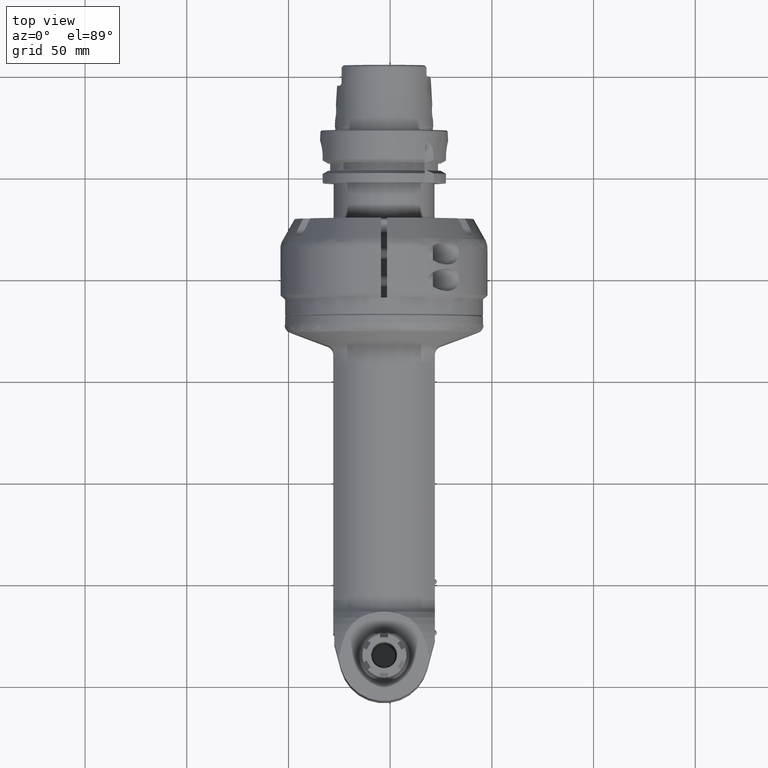
[diagram: clean part render]
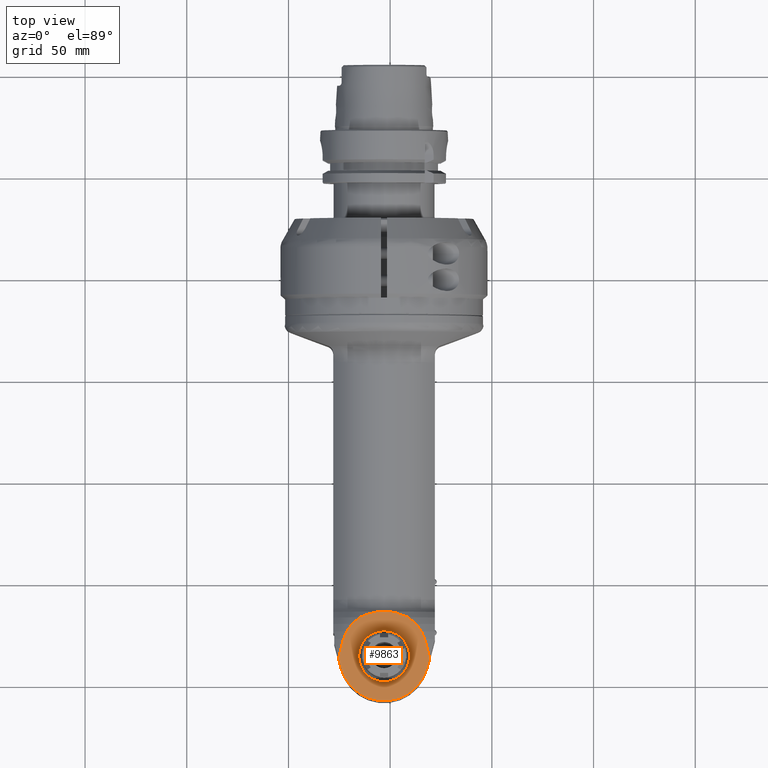
[diagram: same view with one face highlighted and labeled with its STEP entity id]
A machine part, top view. The second image highlights one B-rep face of the part: STEP entity #9863.
In plain terms, the highlighted planar face has unit normal (-0, 0, -1).
Its self-contained STEP definition (entity closure, byte-faithful):
#216=B_SPLINE_CURVE_WITH_KNOTS('',3,(#14979,#14980,#14981,#14982,#14983,
#14984),.UNSPECIFIED.,.F.,.F.,(4,1,1,4),(0.,0.3333333333333,0.6666666666667,
1.),.UNSPECIFIED.);
#222=B_SPLINE_CURVE_WITH_KNOTS('',3,(#15193,#15194,#15195,#15196,#15197,
#15198),.UNSPECIFIED.,.F.,.F.,(4,1,1,4),(0.,0.3333333333333,0.6666666666667,
1.),.UNSPECIFIED.);
#402=(
BOUNDED_CURVE()
B_SPLINE_CURVE(2,(#14967,#14968,#14969),.UNSPECIFIED.,.F.,.F.)
B_SPLINE_CURVE_WITH_KNOTS((3,3),(1.60191751721674,2.06088084008339),
 .UNSPECIFIED.)
CURVE()
GEOMETRIC_REPRESENTATION_ITEM()
RATIONAL_B_SPLINE_CURVE((1.01122226068574,1.01206093335444,1.01245897565118))
REPRESENTATION_ITEM('')
);
#403=(
BOUNDED_CURVE()
B_SPLINE_CURVE(2,(#14973,#14974,#14975),.UNSPECIFIED.,.F.,.F.)
B_SPLINE_CURVE_WITH_KNOTS((3,3),(1.46849617002688,2.03130210920476),
 .UNSPECIFIED.)
CURVE()
GEOMETRIC_REPRESENTATION_ITEM()
RATIONAL_B_SPLINE_CURVE((1.02307361698981,1.02583968844423,1.02733684824822))
REPRESENTATION_ITEM('')
);
#404=(
BOUNDED_CURVE()
B_SPLINE_CURVE(2,(#14988,#14989,#14990),.UNSPECIFIED.,.F.,.F.)
B_SPLINE_CURVE_WITH_KNOTS((3,3),(7.16167869822638,9.31755749206045),
 .UNSPECIFIED.)
CURVE()
GEOMETRIC_REPRESENTATION_ITEM()
RATIONAL_B_SPLINE_CURVE((1.47028864459951,1.47028864459951,1.42767158243733))
REPRESENTATION_ITEM('')
);
#410=(
BOUNDED_CURVE()
B_SPLINE_CURVE(2,(#15179,#15180,#15181),.UNSPECIFIED.,.F.,.F.)
B_SPLINE_CURVE_WITH_KNOTS((3,3),(1.81295924420647,2.81502897257186),
 .UNSPECIFIED.)
CURVE()
GEOMETRIC_REPRESENTATION_ITEM()
RATIONAL_B_SPLINE_CURVE((1.00536397476606,1.00593315802651,1.00549281937369))
REPRESENTATION_ITEM('')
);
#411=(
BOUNDED_CURVE()
B_SPLINE_CURVE(2,(#15185,#15186,#15187),.UNSPECIFIED.,.F.,.F.)
B_SPLINE_CURVE_WITH_KNOTS((3,3),(-2.06088084007443,-1.60191751722093),
 .UNSPECIFIED.)
CURVE()
GEOMETRIC_REPRESENTATION_ITEM()
RATIONAL_B_SPLINE_CURVE((1.01245897565116,1.01206093335443,1.01122226068575))
REPRESENTATION_ITEM('')
);
#412=(
BOUNDED_CURVE()
B_SPLINE_CURVE(2,(#15189,#15190,#15191),.UNSPECIFIED.,.F.,.F.)
B_SPLINE_CURVE_WITH_KNOTS((3,3),(-2.03130210920916,-1.46849617002768),
 .UNSPECIFIED.)
CURVE()
GEOMETRIC_REPRESENTATION_ITEM()
RATIONAL_B_SPLINE_CURVE((1.02733684824824,1.02583968844425,1.02307361698982))
REPRESENTATION_ITEM('')
);
#413=(
BOUNDED_CURVE()
B_SPLINE_CURVE(2,(#15199,#15200,#15201),.UNSPECIFIED.,.F.,.F.)
B_SPLINE_CURVE_WITH_KNOTS((3,3),(-9.31755749206045,-7.16167869822638),
 .UNSPECIFIED.)
CURVE()
GEOMETRIC_REPRESENTATION_ITEM()
RATIONAL_B_SPLINE_CURVE((1.42767158243733,1.47028864459951,1.47028864459951))
REPRESENTATION_ITEM('')
);
#414=(
BOUNDED_CURVE()
B_SPLINE_CURVE(2,(#15202,#15203,#15204),.UNSPECIFIED.,.F.,.F.)
B_SPLINE_CURVE_WITH_KNOTS((3,3),(-2.81499064111714,-1.81291848593978),
 .UNSPECIFIED.)
CURVE()
GEOMETRIC_REPRESENTATION_ITEM()
RATIONAL_B_SPLINE_CURVE((1.00549273102003,1.00593304681551,1.00536384081223))
REPRESENTATION_ITEM('')
);
#535=FACE_BOUND('',#1565,.T.);
#616=PLANE('',#10598);
#959=FACE_OUTER_BOUND('',#1564,.T.);
#1564=EDGE_LOOP('',(#6949,#6950,#6951,#6952,#6953,#6954,#6955,#6956,#6957,
#6958,#6959,#6960,#6961));
#1565=EDGE_LOOP('',(#6962));
#2247=LINE('',#15145,#2934);
#2255=LINE('',#15176,#2942);
#2934=VECTOR('',#11880,10.);
#2942=VECTOR('',#11916,10.);
#3632=CIRCLE('',#10583,22.);
#3638=CIRCLE('',#10599,12.5);
#4147=VERTEX_POINT('',#14964);
#4148=VERTEX_POINT('',#14966);
#4149=VERTEX_POINT('',#14972);
#4150=VERTEX_POINT('',#14978);
#4151=VERTEX_POINT('',#14987);
#4184=VERTEX_POINT('',#15142);
#4185=VERTEX_POINT('',#15144);
#4186=VERTEX_POINT('',#15148);
#4191=VERTEX_POINT('',#15175);
#4192=VERTEX_POINT('',#15183);
#4193=VERTEX_POINT('',#15184);
#4194=VERTEX_POINT('',#15188);
#4195=VERTEX_POINT('',#15192);
#4196=VERTEX_POINT('',#15205);
#5184=EDGE_CURVE('',#4148,#4147,#402,.T.);
#5186=EDGE_CURVE('',#4149,#4148,#403,.T.);
#5188=EDGE_CURVE('',#4150,#4149,#216,.T.);
#5190=EDGE_CURVE('',#4151,#4150,#404,.T.);
#5240=EDGE_CURVE('',#4185,#4184,#2247,.T.);
#5242=EDGE_CURVE('',#4186,#4185,#3632,.T.);
#5255=EDGE_CURVE('',#4191,#4186,#2255,.T.);
#5257=EDGE_CURVE('',#4147,#4191,#410,.T.);
#5258=EDGE_CURVE('',#4192,#4193,#411,.T.);
#5259=EDGE_CURVE('',#4193,#4194,#412,.T.);
#5260=EDGE_CURVE('',#4194,#4195,#222,.T.);
#5261=EDGE_CURVE('',#4195,#4151,#413,.T.);
#5262=EDGE_CURVE('',#4184,#4192,#414,.T.);
#5263=EDGE_CURVE('',#4196,#4196,#3638,.T.);
#6949=ORIENTED_EDGE('',*,*,#5258,.T.);
#6950=ORIENTED_EDGE('',*,*,#5259,.T.);
#6951=ORIENTED_EDGE('',*,*,#5260,.T.);
#6952=ORIENTED_EDGE('',*,*,#5261,.T.);
#6953=ORIENTED_EDGE('',*,*,#5190,.T.);
#6954=ORIENTED_EDGE('',*,*,#5188,.T.);
#6955=ORIENTED_EDGE('',*,*,#5186,.T.);
#6956=ORIENTED_EDGE('',*,*,#5184,.T.);
#6957=ORIENTED_EDGE('',*,*,#5257,.T.);
#6958=ORIENTED_EDGE('',*,*,#5255,.T.);
#6959=ORIENTED_EDGE('',*,*,#5242,.T.);
#6960=ORIENTED_EDGE('',*,*,#5240,.T.);
#6961=ORIENTED_EDGE('',*,*,#5262,.T.);
#6962=ORIENTED_EDGE('',*,*,#5263,.T.);
#9863=ADVANCED_FACE('',(#959,#535),#616,.F.);
#10583=AXIS2_PLACEMENT_3D('',#15149,#11884,#11885);
#10598=AXIS2_PLACEMENT_3D('',#15182,#11921,#11922);
#10599=AXIS2_PLACEMENT_3D('',#15206,#11923,#11924);
#11880=DIRECTION('',(-0.965925826289076,0.,-0.258819045102493));
#11884=DIRECTION('center_axis',(0.,1.,0.));
#11885=DIRECTION('ref_axis',(1.,0.,0.));
#11916=DIRECTION('',(0.965925826289076,0.,-0.258819045102493));
#11921=DIRECTION('center_axis',(0.,-1.,0.));
#11922=DIRECTION('ref_axis',(0.,0.,1.));
#11923=DIRECTION('center_axis',(0.,-1.,0.));
#11924=DIRECTION('ref_axis',(0.,0.,-1.));
#14964=CARTESIAN_POINT('',(171.529981427843,33.4999999124548,19.9687259206096));
#14966=CARTESIAN_POINT('',(167.766277011255,33.499999939448,18.3572876739795));
#14967=CARTESIAN_POINT('Ctrl Pts',(167.76627706602,33.5,18.3572875504996));
#14968=CARTESIAN_POINT('Ctrl Pts',(169.569005757206,33.5,19.1546572718042));
#14969=CARTESIAN_POINT('Ctrl Pts',(171.529981467446,33.5,19.9687258367967));
#14972=CARTESIAN_POINT('',(164.0730564389,33.5,15.70827807241));
#14973=CARTESIAN_POINT('Ctrl Pts',(164.073056438895,33.5,15.7082780724051));
#14974=CARTESIAN_POINT('Ctrl Pts',(165.776070466853,33.5,17.011647132303));
#14975=CARTESIAN_POINT('Ctrl Pts',(167.766277044369,33.5,18.357287625301));
#14978=CARTESIAN_POINT('',(160.8562960581,33.5,11.74734012447));
#14979=CARTESIAN_POINT('Ctrl Pts',(160.8562960581,33.5,11.74734012447));
#14980=CARTESIAN_POINT('Ctrl Pts',(161.1673507769,33.5,12.18566705261));
#14981=CARTESIAN_POINT('Ctrl Pts',(161.8209850198,33.5,13.06308041183));
#14982=CARTESIAN_POINT('Ctrl Pts',(162.8949171239,33.5,14.38367463064));
#14983=CARTESIAN_POINT('Ctrl Pts',(163.6705008735,33.5,15.26612614087));
#14984=CARTESIAN_POINT('Ctrl Pts',(164.0730564389,33.5,15.70827807241));
#14987=CARTESIAN_POINT('',(158.0000000447,33.5,1.06581410364E-14));
#14988=CARTESIAN_POINT('Ctrl Pts',(158.000000044658,33.5,-2.41633756191337E-15));
#14989=CARTESIAN_POINT('Ctrl Pts',(158.000000044658,33.5,5.70341875607514));
#14990=CARTESIAN_POINT('Ctrl Pts',(160.856296058133,33.5,11.7473401244522));
#15142=CARTESIAN_POINT('',(181.097598509981,33.5000040481666,-22.4819815389036));
#15144=CARTESIAN_POINT('',(185.6940189923,33.5,-21.25036817836));
#15145=CARTESIAN_POINT('',(175.643783300844,33.5,-23.9433207156279));
#15148=CARTESIAN_POINT('',(185.6940189923,33.5,21.25036817836));
#15149=CARTESIAN_POINT('Origin',(180.,33.5,0.));
#15175=CARTESIAN_POINT('',(181.097598665241,33.5000040656455,22.4819815240738));
#15176=CARTESIAN_POINT('',(168.646875066792,33.5,25.8181366264403));
#15179=CARTESIAN_POINT('Ctrl Pts',(171.529981480142,33.5,19.9687257423367));
#15180=CARTESIAN_POINT('Ctrl Pts',(176.030551650367,33.5,21.2040595351572));
#15181=CARTESIAN_POINT('Ctrl Pts',(181.097562546962,33.5,22.4819849709166));
#15182=CARTESIAN_POINT('Origin',(158.4563797019,33.5,0.));
#15183=CARTESIAN_POINT('',(171.52998142777,33.499999912464,-19.9687259205714));
#15184=CARTESIAN_POINT('',(167.766277011283,33.4999999394428,-18.3572876740047));
#15185=CARTESIAN_POINT('Ctrl Pts',(171.52998146737,33.5,-19.9687258367649));
#15186=CARTESIAN_POINT('Ctrl Pts',(169.569005757189,33.5,-19.1546572717961));
#15187=CARTESIAN_POINT('Ctrl Pts',(167.766277066053,33.5,-18.3572875505142));
#15188=CARTESIAN_POINT('',(164.0730564389,33.5,-15.70827807242));
#15189=CARTESIAN_POINT('Ctrl Pts',(167.7662770444,33.5,-18.357287625322));
#15190=CARTESIAN_POINT('Ctrl Pts',(165.776070466869,33.5,-17.0116471323151));
#15191=CARTESIAN_POINT('Ctrl Pts',(164.0730564389,33.5,-15.7082780724087));
#15192=CARTESIAN_POINT('',(160.8562960581,33.5,-11.74734012447));
#15193=CARTESIAN_POINT('Ctrl Pts',(164.0730564389,33.5,-15.70827807242));
#15194=CARTESIAN_POINT('Ctrl Pts',(163.670507767,33.5,-15.2661337125));
#15195=CARTESIAN_POINT('Ctrl Pts',(162.8949326746,33.5,-14.38369277651));
#15196=CARTESIAN_POINT('Ctrl Pts',(161.8209996253,33.5,-13.06309935532));
#15197=CARTESIAN_POINT('Ctrl Pts',(161.1673567065,33.5,-12.18567540835));
#15198=CARTESIAN_POINT('Ctrl Pts',(160.8562960581,33.5,-11.74734012447));
#15199=CARTESIAN_POINT('Ctrl Pts',(160.856296058133,33.5,-11.7473401244522));
#15200=CARTESIAN_POINT('Ctrl Pts',(158.000000044658,33.5,-5.70341875607513));
#15201=CARTESIAN_POINT('Ctrl Pts',(158.000000044658,33.5,1.44980253714802E-14));
#15202=CARTESIAN_POINT('Ctrl Pts',(181.097562546981,33.5,-22.4819849709277));
#15203=CARTESIAN_POINT('Ctrl Pts',(176.03055165033,33.5,-21.2040595351547));
#15204=CARTESIAN_POINT('Ctrl Pts',(171.529981480062,33.5,-19.9687257423216));
#15205=CARTESIAN_POINT('',(179.9999999553,33.5,12.5));
#15206=CARTESIAN_POINT('Origin',(179.9999999553,33.5,0.));